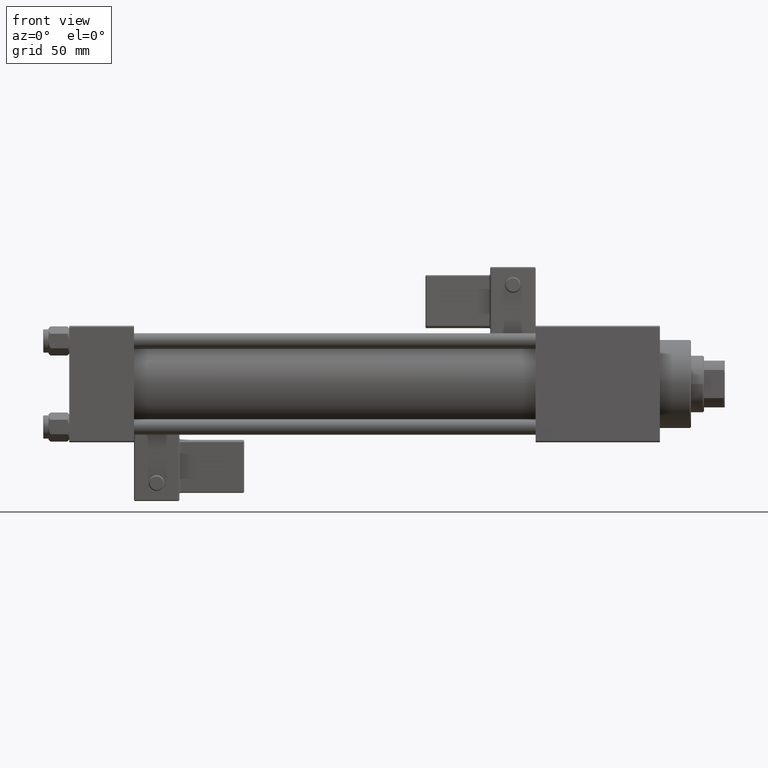
[diagram: clean part render]
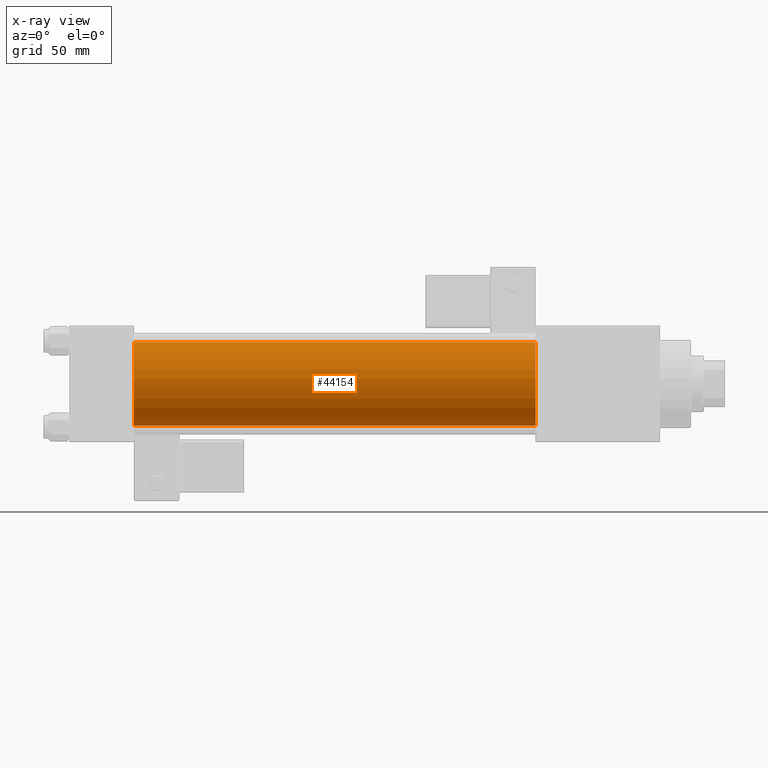
[diagram: x-ray — body ghosted, one internal face saturated and labeled with its STEP entity id]
A machine part, front view, then the same camera in x-ray: the body is ghosted and one INTERNAL B-rep face — a face not visible from any outside direction — is saturated and labeled: STEP entity #44154.
In plain terms, the highlighted cylindrical surface (partial cylindrical patch) has radius 16 mm, axis along (-1, -0, -0).
Its self-contained STEP definition (entity closure, byte-faithful):
#1046 = CYLINDRICAL_SURFACE ( 'NONE', #12605, 16.00000000000000000 ) ;
#1391 = CIRCLE ( 'NONE', #53497, 16.00000000000000000 ) ;
#7176 = LINE ( 'NONE', #49274, #38210 ) ;
#8351 = CARTESIAN_POINT ( 'NONE',  ( 180.0000000000000000, -6.426503353294456087E-16, -16.00000000000000000 ) ) ;
#12074 = DIRECTION ( 'NONE',  ( -1.000000000000000000, -0.000000000000000000, -0.000000000000000000 ) ) ;
#12605 = AXIS2_PLACEMENT_3D ( 'NONE', #26088, #41845, #13045 ) ;
#13045 = DIRECTION ( 'NONE',  ( 0.000000000000000000, 0.000000000000000000, 1.000000000000000000 ) ) ;
#15055 = DIRECTION ( 'NONE',  ( -1.000000000000000000, -0.000000000000000000, -0.000000000000000000 ) ) ;
#15171 = AXIS2_PLACEMENT_3D ( 'NONE', #22941, #27302, #53070 ) ;
#18637 = CIRCLE ( 'NONE', #15171, 16.00000000000000000 ) ;
#19142 = CARTESIAN_POINT ( 'NONE',  ( 180.0000000000000000, -6.426503353294456087E-16, -16.00000000000000000 ) ) ;
#19537 = CARTESIAN_POINT ( 'NONE',  ( 25.00000000000000000, -2.602085213965210642E-15, 16.00000000000000000 ) ) ;
#19954 = VERTEX_POINT ( 'NONE', #36891 ) ;
#21715 = CARTESIAN_POINT ( 'NONE',  ( 25.00000000000000000, -6.426503353294456087E-16, -16.00000000000000000 ) ) ;
#22941 = CARTESIAN_POINT ( 'NONE',  ( 180.0000000000000000, -2.602085213965210642E-15, 0.000000000000000000 ) ) ;
#23437 = EDGE_CURVE ( 'NONE', #19954, #39497, #7176, .T. ) ;
#25280 = FACE_OUTER_BOUND ( 'NONE', #40762, .T. ) ;
#26088 = CARTESIAN_POINT ( 'NONE',  ( 180.0000000000000000, -2.602085213965210642E-15, 0.000000000000000000 ) ) ;
#26095 = ORIENTED_EDGE ( 'NONE', *, *, #36141, .T. ) ;
#27302 = DIRECTION ( 'NONE',  ( 1.000000000000000000, 0.000000000000000000, 0.000000000000000000 ) ) ;
#34147 = VERTEX_POINT ( 'NONE', #8351 ) ;
#36086 = EDGE_CURVE ( 'NONE', #19954, #34147, #18637, .T. ) ;
#36141 = EDGE_CURVE ( 'NONE', #34147, #48165, #48190, .T. ) ;
#36891 = CARTESIAN_POINT ( 'NONE',  ( 180.0000000000000000, -2.602085213965210642E-15, 16.00000000000000000 ) ) ;
#37088 = ORIENTED_EDGE ( 'NONE', *, *, #50176, .F. ) ;
#38210 = VECTOR ( 'NONE', #12074, 1000.000000000000000 ) ;
#39497 = VERTEX_POINT ( 'NONE', #19537 ) ;
#40456 = CARTESIAN_POINT ( 'NONE',  ( 25.00000000000000000, -2.602085213965210642E-15, 0.000000000000000000 ) ) ;
#40762 = EDGE_LOOP ( 'NONE', ( #50490, #26095, #37088, #44155 ) ) ;
#41259 = DIRECTION ( 'NONE',  ( 1.000000000000000000, 0.000000000000000000, 0.000000000000000000 ) ) ;
#41845 = DIRECTION ( 'NONE',  ( -1.000000000000000000, -0.000000000000000000, -0.000000000000000000 ) ) ;
#44154 = ADVANCED_FACE ( 'NONE', ( #25280 ), #1046, .F. ) ;
#44155 = ORIENTED_EDGE ( 'NONE', *, *, #23437, .F. ) ;
#45537 = VECTOR ( 'NONE', #15055, 1000.000000000000000 ) ;
#48165 = VERTEX_POINT ( 'NONE', #21715 ) ;
#48190 = LINE ( 'NONE', #19142, #45537 ) ;
#48587 = DIRECTION ( 'NONE',  ( 0.000000000000000000, 0.000000000000000000, -1.000000000000000000 ) ) ;
#49274 = CARTESIAN_POINT ( 'NONE',  ( 180.0000000000000000, -2.602085213965210642E-15, 16.00000000000000000 ) ) ;
#50176 = EDGE_CURVE ( 'NONE', #39497, #48165, #1391, .T. ) ;
#50490 = ORIENTED_EDGE ( 'NONE', *, *, #36086, .T. ) ;
#53070 = DIRECTION ( 'NONE',  ( 0.000000000000000000, 0.000000000000000000, -1.000000000000000000 ) ) ;
#53497 = AXIS2_PLACEMENT_3D ( 'NONE', #40456, #41259, #48587 ) ;